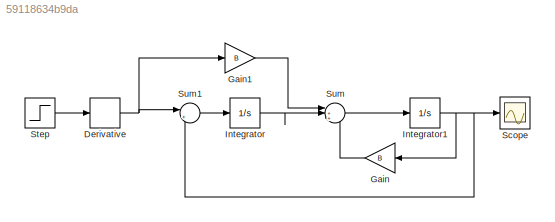
MODEL slx_59118634b9da
KIND model
CONFIG AbsTol = auto
CONFIG EnableMultiTasking = off
CONFIG FixedStep = auto
CONFIG MaxStep = auto
CONFIG MinStep = auto
CONFIG RelTol = 1e-3
CONFIG SampleTimeConstraint = Unconstrained
CONFIG SolverName = VariableStepAuto
CONFIG StartTime = 0.0
CONFIG StopTime = 10.0
BLOCK [Derivative] Derivative
BLOCK [Gain] Gain
  Gain = B
  NameLocation = top
BLOCK [Gain] Gain1
  Gain = B
BLOCK [Integrator] Integrator
  Ports = [1, 1]
BLOCK [Integrator] Integrator1
  Ports = [1, 1]
BLOCK [Scope] Scope
  Floating = off
  NumInputPorts = 1
  Ports = [1]
  ScopeSpecificationString = Simulink.scopes.TimeScopeBlockCfg('CurrentConfiguration', extmgr.ConfigurationSet(extmgr.Configuration('Core','General UI',true),extmgr.Configuration('Core','Source UI',true),extmgr.Configuration('Sources','WiredSimulink',true),extmgr.Configuration('Visuals','Time Domain',true,'SerializedDisplays',{struct('MinYLimReal','-0.05823','MaxYLimReal','0.05832','YLabelReal','','MinYLimMag','0.00000','MaxY...<+1365ch>
BLOCK [Step] Step
  SampleTime = 0
  Time = 0.001
BLOCK [Sum] Sum
  Inputs = |++-
  Ports = [3, 1]
BLOCK [Sum] Sum1
  Inputs = |+-
  Ports = [2, 1]
NET Derivative:1 -> Gain1:1, Sum1:1
LINE Gain1:1 -> Sum:1
LINE Gain:1 -> Sum:3
NET Integrator1:1 -> Gain:1, Scope:1, Sum1:2
LINE Integrator:1 -> Sum:2
LINE Step:1 -> Derivative:1
LINE Sum1:1 -> Integrator:1
LINE Sum:1 -> Integrator1:1
note: NET lines group one-source signal fan-out (src -> all destinations, sorted); 1:1 wires keep LINE
